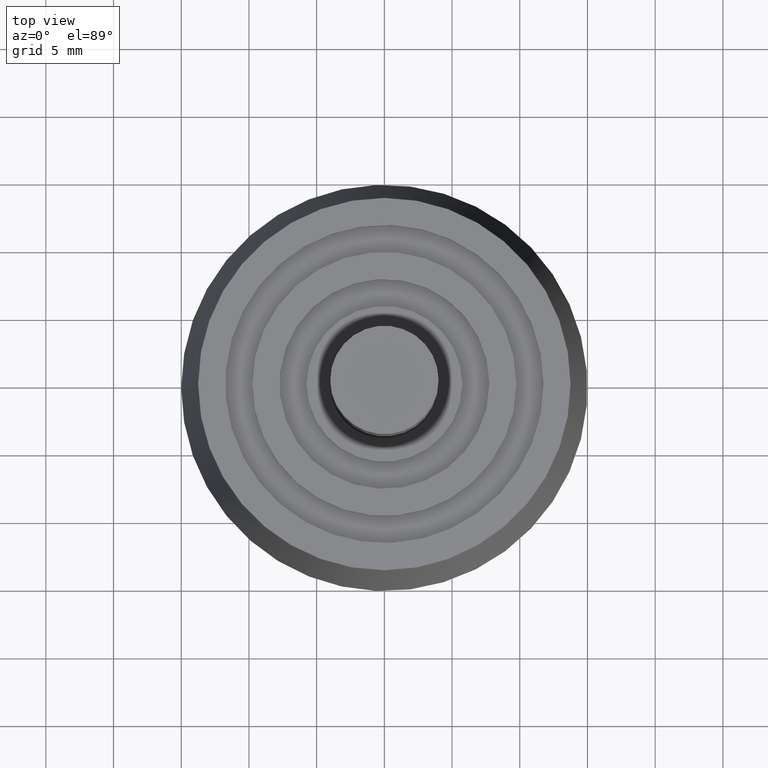
[diagram: clean part render]
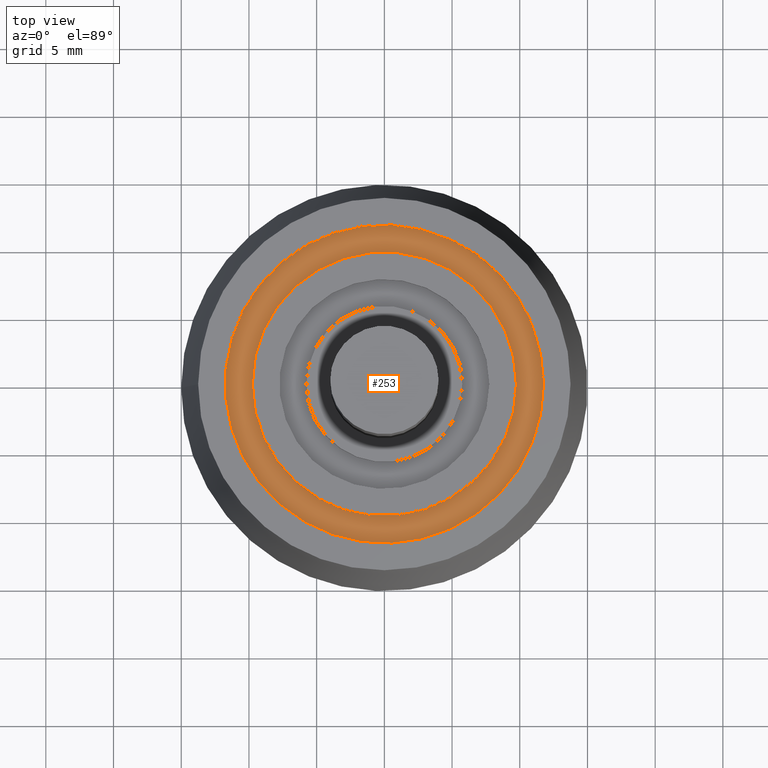
[diagram: same view with one face highlighted and labeled with its STEP entity id]
A machine part, top view. The second image highlights one B-rep face of the part: STEP entity #253.
In plain terms, the highlighted planar face has unit normal (0, 0, 1).
Its self-contained STEP definition (entity closure, byte-faithful):
#23=PLANE('',#299);
#43=FACE_BOUND('',#105,.T.);
#66=FACE_OUTER_BOUND('',#104,.T.);
#104=EDGE_LOOP('',(#214));
#105=EDGE_LOOP('',(#215));
#133=CIRCLE('',#294,9.75);
#135=CIRCLE('',#297,11.75);
#155=VERTEX_POINT('',#449);
#157=VERTEX_POINT('',#454);
#177=EDGE_CURVE('',#155,#155,#133,.T.);
#179=EDGE_CURVE('',#157,#157,#135,.T.);
#214=ORIENTED_EDGE('',*,*,#179,.F.);
#215=ORIENTED_EDGE('',*,*,#177,.F.);
#253=ADVANCED_FACE('',(#66,#43),#23,.T.);
#294=AXIS2_PLACEMENT_3D('',#450,#374,#375);
#297=AXIS2_PLACEMENT_3D('',#455,#380,#381);
#299=AXIS2_PLACEMENT_3D('',#458,#384,#385);
#374=DIRECTION('center_axis',(0.,0.,1.));
#375=DIRECTION('ref_axis',(-1.,0.,0.));
#380=DIRECTION('center_axis',(0.,0.,-1.));
#381=DIRECTION('ref_axis',(-1.,0.,0.));
#384=DIRECTION('center_axis',(0.,0.,1.));
#385=DIRECTION('ref_axis',(1.,0.,0.));
#449=CARTESIAN_POINT('',(9.75,1.19403062916867E-15,15.5));
#450=CARTESIAN_POINT('Origin',(0.,0.,15.5));
#454=CARTESIAN_POINT('',(11.75,1.43895998899814E-15,15.5));
#455=CARTESIAN_POINT('Origin',(0.,0.,15.5));
#458=CARTESIAN_POINT('Origin',(-7.4982710525348E-16,0.,15.5));